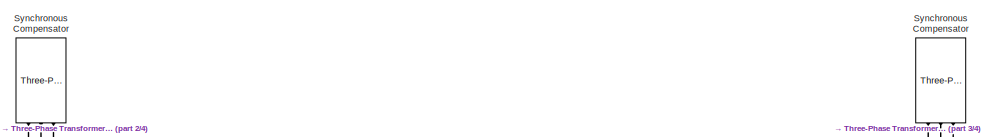
[diagram: root canvas - part 1/4, top center region]
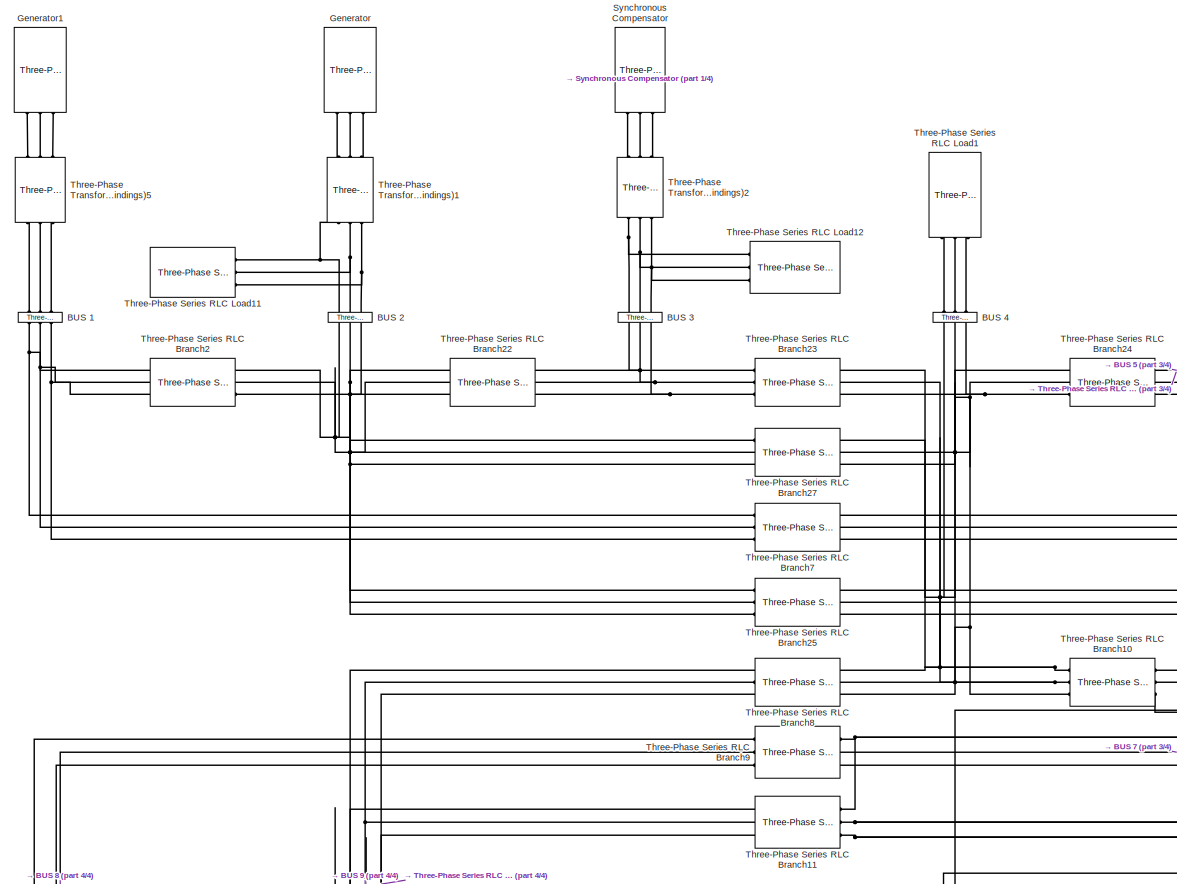
[diagram: root canvas - part 2/4, top left region]
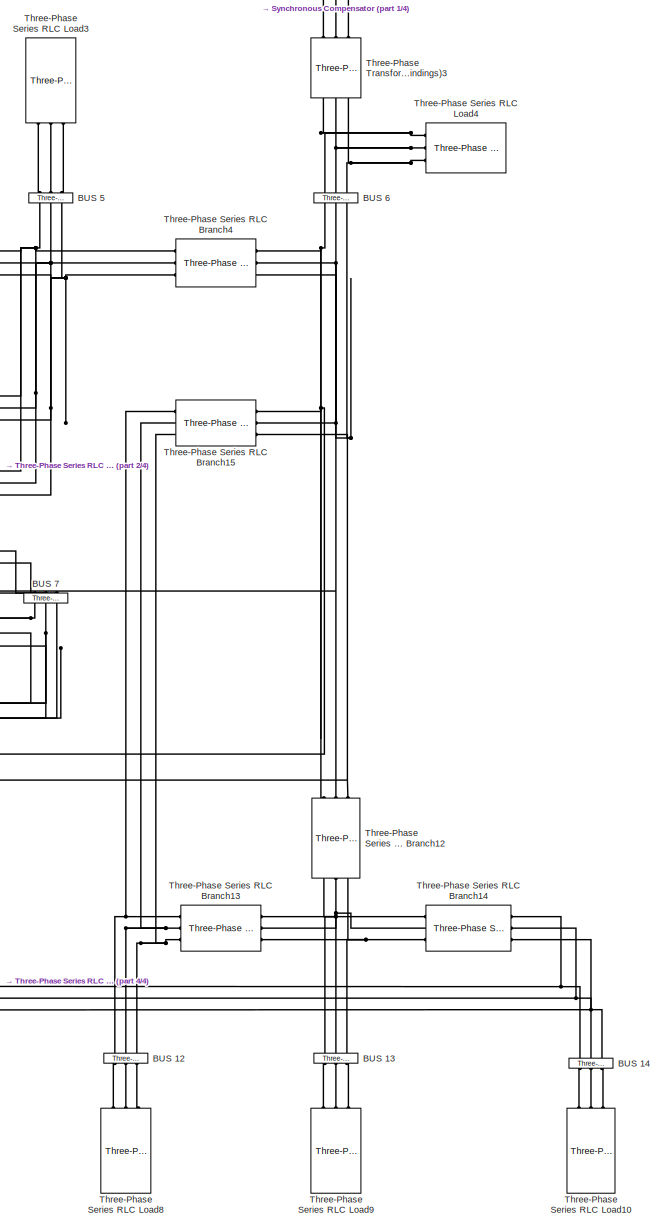
[diagram: root canvas - part 3/4, right side, full height]
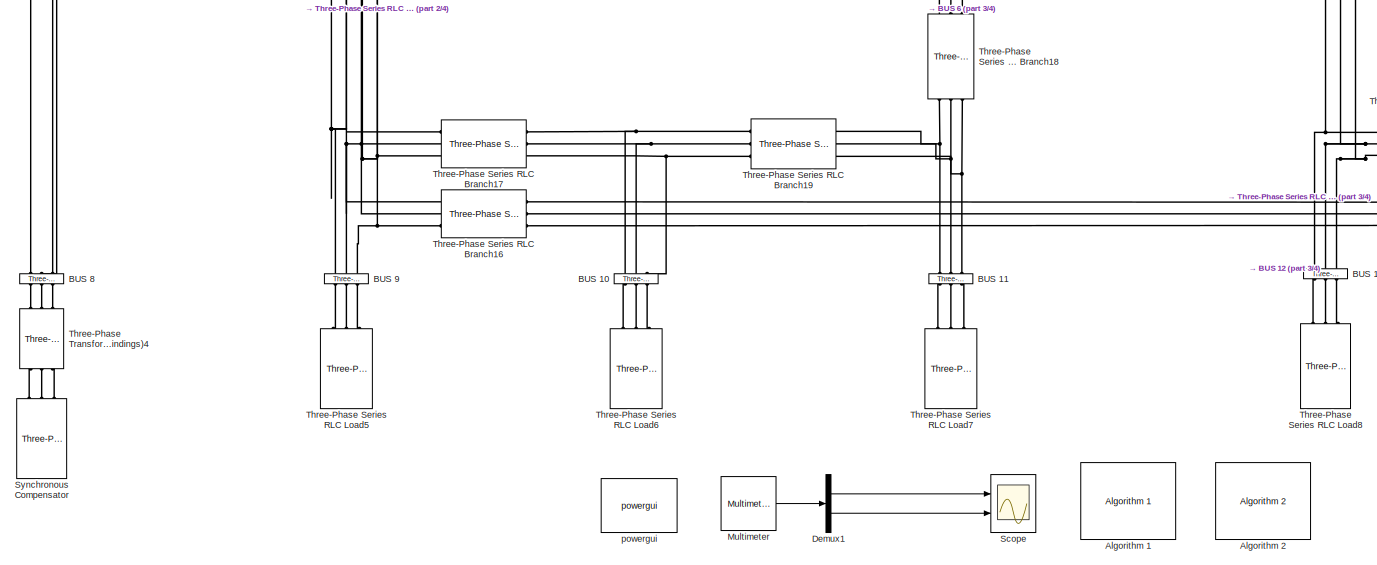
[diagram: root canvas - part 4/4, full width, bottom band]
MODEL slx_8be8e0447e8e
KIND model
CONFIG AbsTol = auto
CONFIG EnableMultiTasking = off
CONFIG FixedStep = auto
CONFIG MaxStep = 1e-4
CONFIG MinStep = auto
CONFIG RelTol = 1e-3
CONFIG SampleTimeConstraint = Unconstrained
CONFIG Solver = FixedStepDiscrete
CONFIG SolverName = FixedStepDiscrete
CONFIG StartTime = 0.0
CONFIG StopTime = 0.125 - 5e-5
BLOCK [Reference]  Generator  REF=powerlib/Electrical
Sources/Three-Phase Source
  Ports = [0, 0, 0, 0, 0, 0, 3]
  SourceBlock = powerlib/Electrical\nSources/Three-Phase Source
  SourceProductBaseCode = PS
  SourceProductName = Simscape Power Systems
  SourceType = Three-Phase Source
BLOCK [Reference]  Generator1  REF=powerlib/Electrical
Sources/Three-Phase Source
  Ports = [0, 0, 0, 0, 0, 0, 3]
  SourceBlock = powerlib/Electrical\nSources/Three-Phase Source
  SourceProductBaseCode = PS
  SourceProductName = Simscape Power Systems
  SourceType = Three-Phase Source
BLOCK [Reference] Algorithm 1  REF=auto_lib/Algorithm 1
  Ports = []
  SourceBlock = auto_lib/Algorithm 1
  SourceProductName = Auto_Design_Framework
BLOCK [Reference] Algorithm 2  REF=auto_lib/Algorithm 2
  Ports = []
  SourceBlock = auto_lib/Algorithm 2
  SourceProductName = Auto_Design_Framework
BLOCK [Reference] BUS 1  REF=powerlib/Measurements/Three-Phase
V-I Measurement
  Ports = [0, 0, 0, 0, 0, 3, 3]
  SourceBlock = powerlib/Measurements/Three-Phase\nV-I Measurement
  SourceProductBaseCode = PS
  SourceProductName = Simscape Power Systems
  SourceType = Three-Phase VI Measurement
BLOCK [Reference] BUS 10  REF=powerlib/Measurements/Three-Phase
V-I Measurement
  Ports = [0, 0, 0, 0, 0, 3, 3]
  SourceBlock = powerlib/Measurements/Three-Phase\nV-I Measurement
  SourceProductBaseCode = PS
  SourceProductName = Simscape Power Systems
  SourceType = Three-Phase VI Measurement
BLOCK [Reference] BUS 11  REF=powerlib/Measurements/Three-Phase
V-I Measurement
  Ports = [0, 0, 0, 0, 0, 3, 3]
  SourceBlock = powerlib/Measurements/Three-Phase\nV-I Measurement
  SourceProductBaseCode = PS
  SourceProductName = Simscape Power Systems
  SourceType = Three-Phase VI Measurement
BLOCK [Reference] BUS 12  REF=powerlib/Measurements/Three-Phase
V-I Measurement
  Ports = [0, 0, 0, 0, 0, 3, 3]
  SourceBlock = powerlib/Measurements/Three-Phase\nV-I Measurement
  SourceProductBaseCode = PS
  SourceProductName = Simscape Power Systems
  SourceType = Three-Phase VI Measurement
BLOCK [Reference] BUS 13  REF=powerlib/Measurements/Three-Phase
V-I Measurement
  Ports = [0, 0, 0, 0, 0, 3, 3]
  SourceBlock = powerlib/Measurements/Three-Phase\nV-I Measurement
  SourceProductBaseCode = PS
  SourceProductName = Simscape Power Systems
  SourceType = Three-Phase VI Measurement
BLOCK [Reference] BUS 14  REF=powerlib/Measurements/Three-Phase
V-I Measurement
  Ports = [0, 0, 0, 0, 0, 3, 3]
  SourceBlock = powerlib/Measurements/Three-Phase\nV-I Measurement
  SourceProductBaseCode = PS
  SourceProductName = Simscape Power Systems
  SourceType = Three-Phase VI Measurement
BLOCK [Reference] BUS 2  REF=powerlib/Measurements/Three-Phase
V-I Measurement
  Ports = [0, 0, 0, 0, 0, 3, 3]
  SourceBlock = powerlib/Measurements/Three-Phase\nV-I Measurement
  SourceProductBaseCode = PS
  SourceProductName = Simscape Power Systems
  SourceType = Three-Phase VI Measurement
BLOCK [Reference] BUS 3  REF=powerlib/Measurements/Three-Phase
V-I Measurement
  Ports = [0, 0, 0, 0, 0, 3, 3]
  SourceBlock = powerlib/Measurements/Three-Phase\nV-I Measurement
  SourceProductBaseCode = PS
  SourceProductName = Simscape Power Systems
  SourceType = Three-Phase VI Measurement
BLOCK [Reference] BUS 4  REF=powerlib/Measurements/Three-Phase
V-I Measurement
  Ports = [0, 0, 0, 0, 0, 3, 3]
  SourceBlock = powerlib/Measurements/Three-Phase\nV-I Measurement
  SourceProductBaseCode = PS
  SourceProductName = Simscape Power Systems
  SourceType = Three-Phase VI Measurement
BLOCK [Reference] BUS 5  REF=powerlib/Measurements/Three-Phase
V-I Measurement
  Ports = [0, 0, 0, 0, 0, 3, 3]
  SourceBlock = powerlib/Measurements/Three-Phase\nV-I Measurement
  SourceProductBaseCode = PS
  SourceProductName = Simscape Power Systems
  SourceType = Three-Phase VI Measurement
BLOCK [Reference] BUS 6  REF=powerlib/Measurements/Three-Phase
V-I Measurement
  Ports = [0, 0, 0, 0, 0, 3, 3]
  SourceBlock = powerlib/Measurements/Three-Phase\nV-I Measurement
  SourceProductBaseCode = PS
  SourceProductName = Simscape Power Systems
  SourceType = Three-Phase VI Measurement
BLOCK [Reference] BUS 7  REF=powerlib/Measurements/Three-Phase
V-I Measurement
  Ports = [0, 0, 0, 0, 0, 3, 3]
  SourceBlock = powerlib/Measurements/Three-Phase\nV-I Measurement
  SourceProductBaseCode = PS
  SourceProductName = Simscape Power Systems
  SourceType = Three-Phase VI Measurement
BLOCK [Reference] BUS 8  REF=powerlib/Measurements/Three-Phase
V-I Measurement
  Ports = [0, 0, 0, 0, 0, 3, 3]
  SourceBlock = powerlib/Measurements/Three-Phase\nV-I Measurement
  SourceProductBaseCode = PS
  SourceProductName = Simscape Power Systems
  SourceType = Three-Phase VI Measurement
BLOCK [Reference] BUS 9  REF=powerlib/Measurements/Three-Phase
V-I Measurement
  Ports = [0, 0, 0, 0, 0, 3, 3]
  SourceBlock = powerlib/Measurements/Three-Phase\nV-I Measurement
  SourceProductBaseCode = PS
  SourceProductName = Simscape Power Systems
  SourceType = Three-Phase VI Measurement
BLOCK [Demux] Demux1
  DisplayOption = bar
  Outputs = 2
  Ports = [1, 2]
BLOCK [Reference] Multimeter  REF=powerlib/Measurements/Multimeter
  Ports = [0, 1]
  SourceBlock = powerlib/Measurements/Multimeter
  SourceProductBaseCode = PS
  SourceProductName = Simscape Power Systems
  SourceType = MultimeterPSB
BLOCK [Scope] Scope
  NumInputPorts = 2
  Ports = [2]
  ScopeSpecificationString = Simulink.scopes.TimeScopeBlockCfg('CurrentConfiguration', extmgr.ConfigurationSet(extmgr.Configuration('Core','General UI',true),extmgr.Configuration('Core','Source UI',true),extmgr.Configuration('Sources','WiredSimulink',true,'DataLoggingVariableName','ScopeData2'),extmgr.Configuration('Visuals','Time Domain',true,'SerializedDisplays',{struct('MinYLimReal','-0.86481','MaxYLimReal','0.86295','YLab...<+1434ch>
BLOCK [Reference] Synchronous Compensator  REF=powerlib/Electrical
Sources/Three-Phase Source
  Ports = [0, 0, 0, 0, 0, 0, 3]
  SourceBlock = powerlib/Electrical\nSources/Three-Phase Source
  SourceProductBaseCode = PS
  SourceProductName = Simscape Power Systems
  SourceType = Three-Phase Source
BLOCK [Reference] Synchronous Compensator   REF=powerlib/Electrical
Sources/Three-Phase Source
  Ports = [0, 0, 0, 0, 0, 0, 3]
  SourceBlock = powerlib/Electrical\nSources/Three-Phase Source
  SourceProductBaseCode = PS
  SourceProductName = Simscape Power Systems
  SourceType = Three-Phase Source
BLOCK [Reference] Three-Phase Series RLC Branch10  REF=powerlib/Elements/Three-Phase
Series RLC Branch
  AttributesFormatString = \n
  Ports = [0, 0, 0, 0, 0, 3, 3]
  SourceBlock = powerlib/Elements/Three-Phase\nSeries RLC Branch
  SourceProductBaseCode = PS
  SourceProductName = Simscape Power Systems
  SourceType = Three-Phase Series RLC Branch
BLOCK [Reference] Three-Phase Series RLC Branch11  REF=powerlib/Elements/Three-Phase
Series RLC Branch
  AttributesFormatString = \n
  Ports = [0, 0, 0, 0, 0, 3, 3]
  SourceBlock = powerlib/Elements/Three-Phase\nSeries RLC Branch
  SourceProductBaseCode = PS
  SourceProductName = Simscape Power Systems
  SourceType = Three-Phase Series RLC Branch
BLOCK [Reference] Three-Phase Series RLC Branch12  REF=powerlib/Elements/Three-Phase
Series RLC Branch
  AttributesFormatString = \n
  Ports = [0, 0, 0, 0, 0, 3, 3]
  SourceBlock = powerlib/Elements/Three-Phase\nSeries RLC Branch
  SourceProductBaseCode = PS
  SourceProductName = Simscape Power Systems
  SourceType = Three-Phase Series RLC Branch
BLOCK [Reference] Three-Phase Series RLC Branch13  REF=powerlib/Elements/Three-Phase
Series RLC Branch
  AttributesFormatString = \n
  Ports = [0, 0, 0, 0, 0, 3, 3]
  SourceBlock = powerlib/Elements/Three-Phase\nSeries RLC Branch
  SourceProductBaseCode = PS
  SourceProductName = Simscape Power Systems
  SourceType = Three-Phase Series RLC Branch
BLOCK [Reference] Three-Phase Series RLC Branch14  REF=powerlib/Elements/Three-Phase
Series RLC Branch
  AttributesFormatString = \n
  Ports = [0, 0, 0, 0, 0, 3, 3]
  SourceBlock = powerlib/Elements/Three-Phase\nSeries RLC Branch
  SourceProductBaseCode = PS
  SourceProductName = Simscape Power Systems
  SourceType = Three-Phase Series RLC Branch
BLOCK [Reference] Three-Phase Series RLC Branch15  REF=powerlib/Elements/Three-Phase
Series RLC Branch
  AttributesFormatString = \n
  Ports = [0, 0, 0, 0, 0, 3, 3]
  SourceBlock = powerlib/Elements/Three-Phase\nSeries RLC Branch
  SourceProductBaseCode = PS
  SourceProductName = Simscape Power Systems
  SourceType = Three-Phase Series RLC Branch
BLOCK [Reference] Three-Phase Series RLC Branch16  REF=powerlib/Elements/Three-Phase
Series RLC Branch
  AttributesFormatString = \n
  Ports = [0, 0, 0, 0, 0, 3, 3]
  SourceBlock = powerlib/Elements/Three-Phase\nSeries RLC Branch
  SourceProductBaseCode = PS
  SourceProductName = Simscape Power Systems
  SourceType = Three-Phase Series RLC Branch
BLOCK [Reference] Three-Phase Series RLC Branch17  REF=powerlib/Elements/Three-Phase
Series RLC Branch
  AttributesFormatString = \n
  Ports = [0, 0, 0, 0, 0, 3, 3]
  SourceBlock = powerlib/Elements/Three-Phase\nSeries RLC Branch
  SourceProductBaseCode = PS
  SourceProductName = Simscape Power Systems
  SourceType = Three-Phase Series RLC Branch
BLOCK [Reference] Three-Phase Series RLC Branch18  REF=powerlib/Elements/Three-Phase
Series RLC Branch
  AttributesFormatString = \n
  Ports = [0, 0, 0, 0, 0, 3, 3]
  SourceBlock = powerlib/Elements/Three-Phase\nSeries RLC Branch
  SourceProductBaseCode = PS
  SourceProductName = Simscape Power Systems
  SourceType = Three-Phase Series RLC Branch
BLOCK [Reference] Three-Phase Series RLC Branch19  REF=powerlib/Elements/Three-Phase
Series RLC Branch
  AttributesFormatString = \n
  Ports = [0, 0, 0, 0, 0, 3, 3]
  SourceBlock = powerlib/Elements/Three-Phase\nSeries RLC Branch
  SourceProductBaseCode = PS
  SourceProductName = Simscape Power Systems
  SourceType = Three-Phase Series RLC Branch
BLOCK [Reference] Three-Phase Series RLC Branch2  REF=powerlib/Elements/Three-Phase
Series RLC Branch
  AttributesFormatString = \n
  Ports = [0, 0, 0, 0, 0, 3, 3]
  SourceBlock = powerlib/Elements/Three-Phase\nSeries RLC Branch
  SourceProductBaseCode = PS
  SourceProductName = Simscape Power Systems
  SourceType = Three-Phase Series RLC Branch
BLOCK [Reference] Three-Phase Series RLC Branch22  REF=powerlib/Elements/Three-Phase
Series RLC Branch
  AttributesFormatString = \n
  Ports = [0, 0, 0, 0, 0, 3, 3]
  SourceBlock = powerlib/Elements/Three-Phase\nSeries RLC Branch
  SourceProductBaseCode = PS
  SourceProductName = Simscape Power Systems
  SourceType = Three-Phase Series RLC Branch
BLOCK [Reference] Three-Phase Series RLC Branch23  REF=powerlib/Elements/Three-Phase
Series RLC Branch
  AttributesFormatString = \n
  Ports = [0, 0, 0, 0, 0, 3, 3]
  SourceBlock = powerlib/Elements/Three-Phase\nSeries RLC Branch
  SourceProductBaseCode = PS
  SourceProductName = Simscape Power Systems
  SourceType = Three-Phase Series RLC Branch
BLOCK [Reference] Three-Phase Series RLC Branch24  REF=powerlib/Elements/Three-Phase
Series RLC Branch
  AttributesFormatString = \n
  Ports = [0, 0, 0, 0, 0, 3, 3]
  SourceBlock = powerlib/Elements/Three-Phase\nSeries RLC Branch
  SourceProductBaseCode = PS
  SourceProductName = Simscape Power Systems
  SourceType = Three-Phase Series RLC Branch
BLOCK [Reference] Three-Phase Series RLC Branch25  REF=powerlib/Elements/Three-Phase
Series RLC Branch
  AttributesFormatString = \n
  Ports = [0, 0, 0, 0, 0, 3, 3]
  SourceBlock = powerlib/Elements/Three-Phase\nSeries RLC Branch
  SourceProductBaseCode = PS
  SourceProductName = Simscape Power Systems
  SourceType = Three-Phase Series RLC Branch
BLOCK [Reference] Three-Phase Series RLC Branch27  REF=powerlib/Elements/Three-Phase
Series RLC Branch
  AttributesFormatString = \n
  Ports = [0, 0, 0, 0, 0, 3, 3]
  SourceBlock = powerlib/Elements/Three-Phase\nSeries RLC Branch
  SourceProductBaseCode = PS
  SourceProductName = Simscape Power Systems
  SourceType = Three-Phase Series RLC Branch
BLOCK [Reference] Three-Phase Series RLC Branch4  REF=powerlib/Elements/Three-Phase
Series RLC Branch
  AttributesFormatString = \n
  Ports = [0, 0, 0, 0, 0, 3, 3]
  SourceBlock = powerlib/Elements/Three-Phase\nSeries RLC Branch
  SourceProductBaseCode = PS
  SourceProductName = Simscape Power Systems
  SourceType = Three-Phase Series RLC Branch
BLOCK [Reference] Three-Phase Series RLC Branch7  REF=powerlib/Elements/Three-Phase
Series RLC Branch
  AttributesFormatString = \n
  Ports = [0, 0, 0, 0, 0, 3, 3]
  SourceBlock = powerlib/Elements/Three-Phase\nSeries RLC Branch
  SourceProductBaseCode = PS
  SourceProductName = Simscape Power Systems
  SourceType = Three-Phase Series RLC Branch
BLOCK [Reference] Three-Phase Series RLC Branch8  REF=powerlib/Elements/Three-Phase
Series RLC Branch
  AttributesFormatString = \n
  Ports = [0, 0, 0, 0, 0, 3, 3]
  SourceBlock = powerlib/Elements/Three-Phase\nSeries RLC Branch
  SourceProductBaseCode = PS
  SourceProductName = Simscape Power Systems
  SourceType = Three-Phase Series RLC Branch
BLOCK [Reference] Three-Phase Series RLC Branch9  REF=powerlib/Elements/Three-Phase
Series RLC Branch
  AttributesFormatString = \n
  Ports = [0, 0, 0, 0, 0, 3, 3]
  SourceBlock = powerlib/Elements/Three-Phase\nSeries RLC Branch
  SourceProductBaseCode = PS
  SourceProductName = Simscape Power Systems
  SourceType = Three-Phase Series RLC Branch
BLOCK [Reference] Three-Phase Series RLC Load1  REF=powerlib/Elements/Three-Phase
Series RLC Load
  AttributesFormatString = \n
  Ports = [0, 0, 0, 0, 0, 3]
  SourceBlock = powerlib/Elements/Three-Phase\nSeries RLC Load
  SourceProductBaseCode = PS
  SourceProductName = Simscape Power Systems
  SourceType = Three-Phase Series RLC Load
BLOCK [Reference] Three-Phase Series RLC Load10  REF=powerlib/Elements/Three-Phase
Series RLC Load
  AttributesFormatString = \n
  Ports = [0, 0, 0, 0, 0, 3]
  SourceBlock = powerlib/Elements/Three-Phase\nSeries RLC Load
  SourceProductBaseCode = PS
  SourceProductName = Simscape Power Systems
  SourceType = Three-Phase Series RLC Load
BLOCK [Reference] Three-Phase Series RLC Load11  REF=powerlib/Elements/Three-Phase
Series RLC Load
  AttributesFormatString = \n
  Ports = [0, 0, 0, 0, 0, 3]
  SourceBlock = powerlib/Elements/Three-Phase\nSeries RLC Load
  SourceProductBaseCode = PS
  SourceProductName = Simscape Power Systems
  SourceType = Three-Phase Series RLC Load
BLOCK [Reference] Three-Phase Series RLC Load12  REF=powerlib/Elements/Three-Phase
Series RLC Load
  AttributesFormatString = \n
  Ports = [0, 0, 0, 0, 0, 3]
  SourceBlock = powerlib/Elements/Three-Phase\nSeries RLC Load
  SourceProductBaseCode = PS
  SourceProductName = Simscape Power Systems
  SourceType = Three-Phase Series RLC Load
BLOCK [Reference] Three-Phase Series RLC Load3  REF=powerlib/Elements/Three-Phase
Series RLC Load
  AttributesFormatString = \n
  Ports = [0, 0, 0, 0, 0, 3]
  SourceBlock = powerlib/Elements/Three-Phase\nSeries RLC Load
  SourceProductBaseCode = PS
  SourceProductName = Simscape Power Systems
  SourceType = Three-Phase Series RLC Load
BLOCK [Reference] Three-Phase Series RLC Load4  REF=powerlib/Elements/Three-Phase
Series RLC Load
  AttributesFormatString = \n
  Ports = [0, 0, 0, 0, 0, 3]
  SourceBlock = powerlib/Elements/Three-Phase\nSeries RLC Load
  SourceProductBaseCode = PS
  SourceProductName = Simscape Power Systems
  SourceType = Three-Phase Series RLC Load
BLOCK [Reference] Three-Phase Series RLC Load5  REF=powerlib/Elements/Three-Phase
Series RLC Load
  AttributesFormatString = \n
  Ports = [0, 0, 0, 0, 0, 3]
  SourceBlock = powerlib/Elements/Three-Phase\nSeries RLC Load
  SourceProductBaseCode = PS
  SourceProductName = Simscape Power Systems
  SourceType = Three-Phase Series RLC Load
BLOCK [Reference] Three-Phase Series RLC Load6  REF=powerlib/Elements/Three-Phase
Series RLC Load
  AttributesFormatString = \n
  Ports = [0, 0, 0, 0, 0, 3]
  SourceBlock = powerlib/Elements/Three-Phase\nSeries RLC Load
  SourceProductBaseCode = PS
  SourceProductName = Simscape Power Systems
  SourceType = Three-Phase Series RLC Load
BLOCK [Reference] Three-Phase Series RLC Load7  REF=powerlib/Elements/Three-Phase
Series RLC Load
  AttributesFormatString = \n
  Ports = [0, 0, 0, 0, 0, 3]
  SourceBlock = powerlib/Elements/Three-Phase\nSeries RLC Load
  SourceProductBaseCode = PS
  SourceProductName = Simscape Power Systems
  SourceType = Three-Phase Series RLC Load
BLOCK [Reference] Three-Phase Series RLC Load8  REF=powerlib/Elements/Three-Phase
Series RLC Load
  AttributesFormatString = \n
  Ports = [0, 0, 0, 0, 0, 3]
  SourceBlock = powerlib/Elements/Three-Phase\nSeries RLC Load
  SourceProductBaseCode = PS
  SourceProductName = Simscape Power Systems
  SourceType = Three-Phase Series RLC Load
BLOCK [Reference] Three-Phase Series RLC Load9  REF=powerlib/Elements/Three-Phase
Series RLC Load
  AttributesFormatString = \n
  Ports = [0, 0, 0, 0, 0, 3]
  SourceBlock = powerlib/Elements/Three-Phase\nSeries RLC Load
  SourceProductBaseCode = PS
  SourceProductName = Simscape Power Systems
  SourceType = Three-Phase Series RLC Load
BLOCK [Reference] Three-Phase Transformer (Two Windings)1  REF=powerlib/Elements/Three-Phase
Transformer
(Two Windings)
  Ports = [0, 0, 0, 0, 0, 3, 3]
  SourceBlock = powerlib/Elements/Three-Phase\nTransformer\n(Two Windings)
  SourceProductBaseCode = PS
  SourceProductName = Simscape Power Systems
  SourceType = Three-Phase Transformer (Two Windings)
BLOCK [Reference] Three-Phase Transformer (Two Windings)2  REF=powerlib/Elements/Three-Phase
Transformer
(Two Windings)
  Ports = [0, 0, 0, 0, 0, 3, 3]
  SourceBlock = powerlib/Elements/Three-Phase\nTransformer\n(Two Windings)
  SourceProductBaseCode = PS
  SourceProductName = Simscape Power Systems
  SourceType = Three-Phase Transformer (Two Windings)
BLOCK [Reference] Three-Phase Transformer (Two Windings)3  REF=powerlib/Elements/Three-Phase
Transformer
(Two Windings)
  Ports = [0, 0, 0, 0, 0, 3, 3]
  SourceBlock = powerlib/Elements/Three-Phase\nTransformer\n(Two Windings)
  SourceProductBaseCode = PS
  SourceProductName = Simscape Power Systems
  SourceType = Three-Phase Transformer (Two Windings)
BLOCK [Reference] Three-Phase Transformer (Two Windings)4  REF=powerlib/Elements/Three-Phase
Transformer
(Two Windings)
  Ports = [0, 0, 0, 0, 0, 3, 3]
  SourceBlock = powerlib/Elements/Three-Phase\nTransformer\n(Two Windings)
  SourceProductBaseCode = PS
  SourceProductName = Simscape Power Systems
  SourceType = Three-Phase Transformer (Two Windings)
BLOCK [Reference] Three-Phase Transformer (Two Windings)5  REF=powerlib/Elements/Three-Phase
Transformer
(Two Windings)
  Ports = [0, 0, 0, 0, 0, 3, 3]
  SourceBlock = powerlib/Elements/Three-Phase\nTransformer\n(Two Windings)
  SourceProductBaseCode = PS
  SourceProductName = Simscape Power Systems
  SourceType = Three-Phase Transformer (Two Windings)
BLOCK [Reference] powergui  REF=powerlib/powergui
  Ports = []
  Priority = 1
  SourceBlock = powerlib/powergui
  SourceProductBaseCode = PS
  SourceProductName = Simscape Power Systems
  SourceType = PSB option menu block
LINE Demux1:1 -> Scope:1
LINE Demux1:2 -> Scope:2
LINE Multimeter:1 -> Demux1:1
PLINE  Generator1:RConn1 -- Three-Phase Transformer (Two Windings)5:LConn1
PLINE  Generator1:RConn2 -- Three-Phase Transformer (Two Windings)5:LConn2
PLINE  Generator1:RConn3 -- Three-Phase Transformer (Two Windings)5:LConn3
PLINE  Generator:RConn1 -- Three-Phase Transformer (Two Windings)1:LConn1
PLINE  Generator:RConn2 -- Three-Phase Transformer (Two Windings)1:LConn2
PLINE  Generator:RConn3 -- Three-Phase Transformer (Two Windings)1:LConn3
PNET net1: BUS 10:LConn1 -- Three-Phase Series RLC Branch17:LConn1 -- Three-Phase Series RLC Branch19:LConn1
PNET net2: BUS 10:LConn2 -- Three-Phase Series RLC Branch17:LConn2 -- Three-Phase Series RLC Branch19:LConn2
PNET net3: BUS 10:LConn3 -- Three-Phase Series RLC Branch17:LConn3 -- Three-Phase Series RLC Branch19:LConn3
PLINE BUS 10:RConn1 -- Three-Phase Series RLC Load6:LConn1
PLINE BUS 10:RConn2 -- Three-Phase Series RLC Load6:LConn2
PLINE BUS 10:RConn3 -- Three-Phase Series RLC Load6:LConn3
PNET net4: BUS 11:LConn1 -- Three-Phase Series RLC Branch18:RConn1 -- Three-Phase Series RLC Branch19:RConn1
PNET net5: BUS 11:LConn2 -- Three-Phase Series RLC Branch18:RConn2 -- Three-Phase Series RLC Branch19:RConn2
PNET net6: BUS 11:LConn3 -- Three-Phase Series RLC Branch18:RConn3 -- Three-Phase Series RLC Branch19:RConn3
PLINE BUS 11:RConn1 -- Three-Phase Series RLC Load7:LConn1
PLINE BUS 11:RConn2 -- Three-Phase Series RLC Load7:LConn2
PLINE BUS 11:RConn3 -- Three-Phase Series RLC Load7:LConn3
PNET net7: BUS 12:LConn1 -- Three-Phase Series RLC Branch13:RConn1 -- Three-Phase Series RLC Branch15:RConn1
PNET net8: BUS 12:LConn2 -- Three-Phase Series RLC Branch13:RConn2 -- Three-Phase Series RLC Branch15:RConn2
PNET net9: BUS 12:LConn3 -- Three-Phase Series RLC Branch13:RConn3 -- Three-Phase Series RLC Branch15:RConn3
PLINE BUS 12:RConn1 -- Three-Phase Series RLC Load8:LConn1
PLINE BUS 12:RConn2 -- Three-Phase Series RLC Load8:LConn2
PLINE BUS 12:RConn3 -- Three-Phase Series RLC Load8:LConn3
PNET net10: BUS 13:LConn1 -- Three-Phase Series RLC Branch12:RConn1 -- Three-Phase Series RLC Branch13:LConn1 -- Three-Phase Series RLC Branch14:RConn1
PNET net11: BUS 13:LConn2 -- Three-Phase Series RLC Branch12:RConn2 -- Three-Phase Series RLC Branch13:LConn2 -- Three-Phase Series RLC Branch14:RConn2
PNET net12: BUS 13:LConn3 -- Three-Phase Series RLC Branch12:RConn3 -- Three-Phase Series RLC Branch13:LConn3 -- Three-Phase Series RLC Branch14:RConn3
PLINE BUS 13:RConn1 -- Three-Phase Series RLC Load9:LConn1
PLINE BUS 13:RConn2 -- Three-Phase Series RLC Load9:LConn2
PLINE BUS 13:RConn3 -- Three-Phase Series RLC Load9:LConn3
PNET net13: BUS 14:LConn1 -- Three-Phase Series RLC Branch14:LConn1 -- Three-Phase Series RLC Branch16:LConn1
PNET net14: BUS 14:LConn2 -- Three-Phase Series RLC Branch14:LConn2 -- Three-Phase Series RLC Branch16:LConn2
PNET net15: BUS 14:LConn3 -- Three-Phase Series RLC Branch14:LConn3 -- Three-Phase Series RLC Branch16:LConn3
PLINE BUS 14:RConn1 -- Three-Phase Series RLC Load10:LConn1
PLINE BUS 14:RConn2 -- Three-Phase Series RLC Load10:LConn2
PLINE BUS 14:RConn3 -- Three-Phase Series RLC Load10:LConn3
PLINE BUS 1:LConn1 -- Three-Phase Transformer (Two Windings)5:RConn1
PLINE BUS 1:LConn2 -- Three-Phase Transformer (Two Windings)5:RConn2
PLINE BUS 1:LConn3 -- Three-Phase Transformer (Two Windings)5:RConn3
PNET net16: BUS 1:RConn1 -- Three-Phase Series RLC Branch2:LConn1 -- Three-Phase Series RLC Branch7:LConn1
PNET net17: BUS 1:RConn2 -- Three-Phase Series RLC Branch2:LConn2 -- Three-Phase Series RLC Branch7:LConn2
PNET net18: BUS 1:RConn3 -- Three-Phase Series RLC Branch2:LConn3 -- Three-Phase Series RLC Branch7:LConn3
PNET net19: BUS 2:LConn1 -- Three-Phase Series RLC Load11:LConn1 -- Three-Phase Transformer (Two Windings)1:RConn1
PNET net20: BUS 2:LConn2 -- Three-Phase Series RLC Load11:LConn2 -- Three-Phase Transformer (Two Windings)1:RConn2
PNET net21: BUS 2:LConn3 -- Three-Phase Series RLC Load11:LConn3 -- Three-Phase Transformer (Two Windings)1:RConn3
PNET net22: BUS 2:RConn1 -- Three-Phase Series RLC Branch22:LConn1 -- Three-Phase Series RLC Branch25:LConn1 -- Three-Phase Series RLC Branch27:LConn1 -- Three-Phase Series RLC Branch2:RConn1
PNET net23: BUS 2:RConn2 -- Three-Phase Series RLC Branch22:LConn2 -- Three-Phase Series RLC Branch25:LConn2 -- Three-Phase Series RLC Branch27:LConn2 -- Three-Phase Series RLC Branch2:RConn2
PNET net24: BUS 2:RConn3 -- Three-Phase Series RLC Branch22:LConn3 -- Three-Phase Series RLC Branch25:LConn3 -- Three-Phase Series RLC Branch27:LConn3 -- Three-Phase Series RLC Branch2:RConn3
PNET net25: BUS 3:LConn1 -- Three-Phase Series RLC Load12:LConn1 -- Three-Phase Transformer (Two Windings)2:RConn1
PNET net26: BUS 3:LConn2 -- Three-Phase Series RLC Load12:LConn2 -- Three-Phase Transformer (Two Windings)2:RConn2
PNET net27: BUS 3:LConn3 -- Three-Phase Series RLC Load12:LConn3 -- Three-Phase Transformer (Two Windings)2:RConn3
PNET net28: BUS 3:RConn1 -- Three-Phase Series RLC Branch22:RConn1 -- Three-Phase Series RLC Branch23:LConn1
PNET net29: BUS 3:RConn2 -- Three-Phase Series RLC Branch22:RConn2 -- Three-Phase Series RLC Branch23:LConn2
PNET net30: BUS 3:RConn3 -- Three-Phase Series RLC Branch22:RConn3 -- Three-Phase Series RLC Branch23:LConn3
PLINE BUS 4:LConn1 -- Three-Phase Series RLC Load1:LConn1
PLINE BUS 4:LConn2 -- Three-Phase Series RLC Load1:LConn2
PLINE BUS 4:LConn3 -- Three-Phase Series RLC Load1:LConn3
PNET net31: BUS 4:RConn1 -- Three-Phase Series RLC Branch10:LConn1 -- Three-Phase Series RLC Branch23:RConn1 -- Three-Phase Series RLC Branch24:LConn1 -- Three-Phase Series RLC Branch27:RConn1 -- Three-Phase Series RLC Branch8:RConn1
PNET net32: BUS 4:RConn2 -- Three-Phase Series RLC Branch10:LConn2 -- Three-Phase Series RLC Branch23:RConn2 -- Three-Phase Series RLC Branch24:LConn2 -- Three-Phase Series RLC Branch27:RConn2 -- Three-Phase Series RLC Branch8:RConn2
PNET net33: BUS 4:RConn3 -- Three-Phase Series RLC Branch10:LConn3 -- Three-Phase Series RLC Branch23:RConn3 -- Three-Phase Series RLC Branch24:LConn3 -- Three-Phase Series RLC Branch27:RConn3 -- Three-Phase Series RLC Branch8:RConn3
PLINE BUS 5:LConn1 -- Three-Phase Series RLC Load3:LConn1
PLINE BUS 5:LConn2 -- Three-Phase Series RLC Load3:LConn2
PLINE BUS 5:LConn3 -- Three-Phase Series RLC Load3:LConn3
PNET net34: BUS 5:RConn1 -- Three-Phase Series RLC Branch24:RConn1 -- Three-Phase Series RLC Branch25:RConn1 -- Three-Phase Series RLC Branch4:LConn1 -- Three-Phase Series RLC Branch7:RConn1
PNET net35: BUS 5:RConn2 -- Three-Phase Series RLC Branch24:RConn2 -- Three-Phase Series RLC Branch25:RConn2 -- Three-Phase Series RLC Branch4:LConn2 -- Three-Phase Series RLC Branch7:RConn2
PNET net36: BUS 5:RConn3 -- Three-Phase Series RLC Branch24:RConn3 -- Three-Phase Series RLC Branch25:RConn3 -- Three-Phase Series RLC Branch4:LConn3 -- Three-Phase Series RLC Branch7:RConn3
PNET net37: BUS 6:LConn1 -- Three-Phase Series RLC Load4:LConn1 -- Three-Phase Transformer (Two Windings)3:RConn1
PNET net38: BUS 6:LConn2 -- Three-Phase Series RLC Load4:LConn2 -- Three-Phase Transformer (Two Windings)3:RConn2
PNET net39: BUS 6:LConn3 -- Three-Phase Series RLC Load4:LConn3 -- Three-Phase Transformer (Two Windings)3:RConn3
PNET net40: BUS 6:RConn1 -- Three-Phase Series RLC Branch12:LConn1 -- Three-Phase Series RLC Branch15:LConn1 -- Three-Phase Series RLC Branch18:LConn1 -- Three-Phase Series RLC Branch4:RConn1
PNET net41: BUS 6:RConn2 -- Three-Phase Series RLC Branch12:LConn2 -- Three-Phase Series RLC Branch15:LConn2 -- Three-Phase Series RLC Branch18:LConn2 -- Three-Phase Series RLC Branch4:RConn2
PNET net42: BUS 6:RConn3 -- Three-Phase Series RLC Branch12:LConn3 -- Three-Phase Series RLC Branch15:LConn3 -- Three-Phase Series RLC Branch18:LConn3 -- Three-Phase Series RLC Branch4:RConn3
PLINE BUS 7:LConn1 -- Three-Phase Series RLC Branch10:RConn1
PLINE BUS 7:LConn2 -- Three-Phase Series RLC Branch10:RConn2
PLINE BUS 7:LConn3 -- Three-Phase Series RLC Branch10:RConn3
PNET net43: BUS 7:RConn1 -- Three-Phase Series RLC Branch11:LConn1 -- Three-Phase Series RLC Branch9:RConn1
PNET net44: BUS 7:RConn2 -- Three-Phase Series RLC Branch11:LConn2 -- Three-Phase Series RLC Branch9:RConn2
PNET net45: BUS 7:RConn3 -- Three-Phase Series RLC Branch11:LConn3 -- Three-Phase Series RLC Branch9:RConn3
PLINE BUS 8:LConn1 -- Three-Phase Series RLC Branch9:LConn1
PLINE BUS 8:LConn2 -- Three-Phase Series RLC Branch9:LConn2
PLINE BUS 8:LConn3 -- Three-Phase Series RLC Branch9:LConn3
PLINE BUS 8:RConn1 -- Three-Phase Transformer (Two Windings)4:LConn1
PLINE BUS 8:RConn2 -- Three-Phase Transformer (Two Windings)4:LConn2
PLINE BUS 8:RConn3 -- Three-Phase Transformer (Two Windings)4:LConn3
PNET net46: BUS 9:LConn1 -- Three-Phase Series RLC Branch11:RConn1 -- Three-Phase Series RLC Branch16:RConn1 -- Three-Phase Series RLC Branch17:RConn1 -- Three-Phase Series RLC Branch8:LConn1
PNET net47: BUS 9:LConn2 -- Three-Phase Series RLC Branch11:RConn2 -- Three-Phase Series RLC Branch16:RConn2 -- Three-Phase Series RLC Branch17:RConn2 -- Three-Phase Series RLC Branch8:LConn2
PNET net48: BUS 9:LConn3 -- Three-Phase Series RLC Branch11:RConn3 -- Three-Phase Series RLC Branch16:RConn3 -- Three-Phase Series RLC Branch17:RConn3 -- Three-Phase Series RLC Branch8:LConn3
PLINE BUS 9:RConn1 -- Three-Phase Series RLC Load5:LConn1
PLINE BUS 9:RConn2 -- Three-Phase Series RLC Load5:LConn2
PLINE BUS 9:RConn3 -- Three-Phase Series RLC Load5:LConn3
PLINE Synchronous Compensator :RConn1 -- Three-Phase Transformer (Two Windings)3:LConn1
PLINE Synchronous Compensator :RConn2 -- Three-Phase Transformer (Two Windings)3:LConn2
PLINE Synchronous Compensator :RConn3 -- Three-Phase Transformer (Two Windings)3:LConn3
PNET net49: Synchronous Compensator:RConn1 -- Three-Phase Transformer (Two Windings)2:LConn1 -- Three-Phase Transformer (Two Windings)4:RConn1
PNET net50: Synchronous Compensator:RConn2 -- Three-Phase Transformer (Two Windings)2:LConn2 -- Three-Phase Transformer (Two Windings)4:RConn2
PNET net51: Synchronous Compensator:RConn3 -- Three-Phase Transformer (Two Windings)2:LConn3 -- Three-Phase Transformer (Two Windings)4:RConn3
note: PNET lines group multi-terminal physical nets as a canonical sorted terminal list (undirected conserving connections); 2-terminal nets keep the pairwise PLINE form
